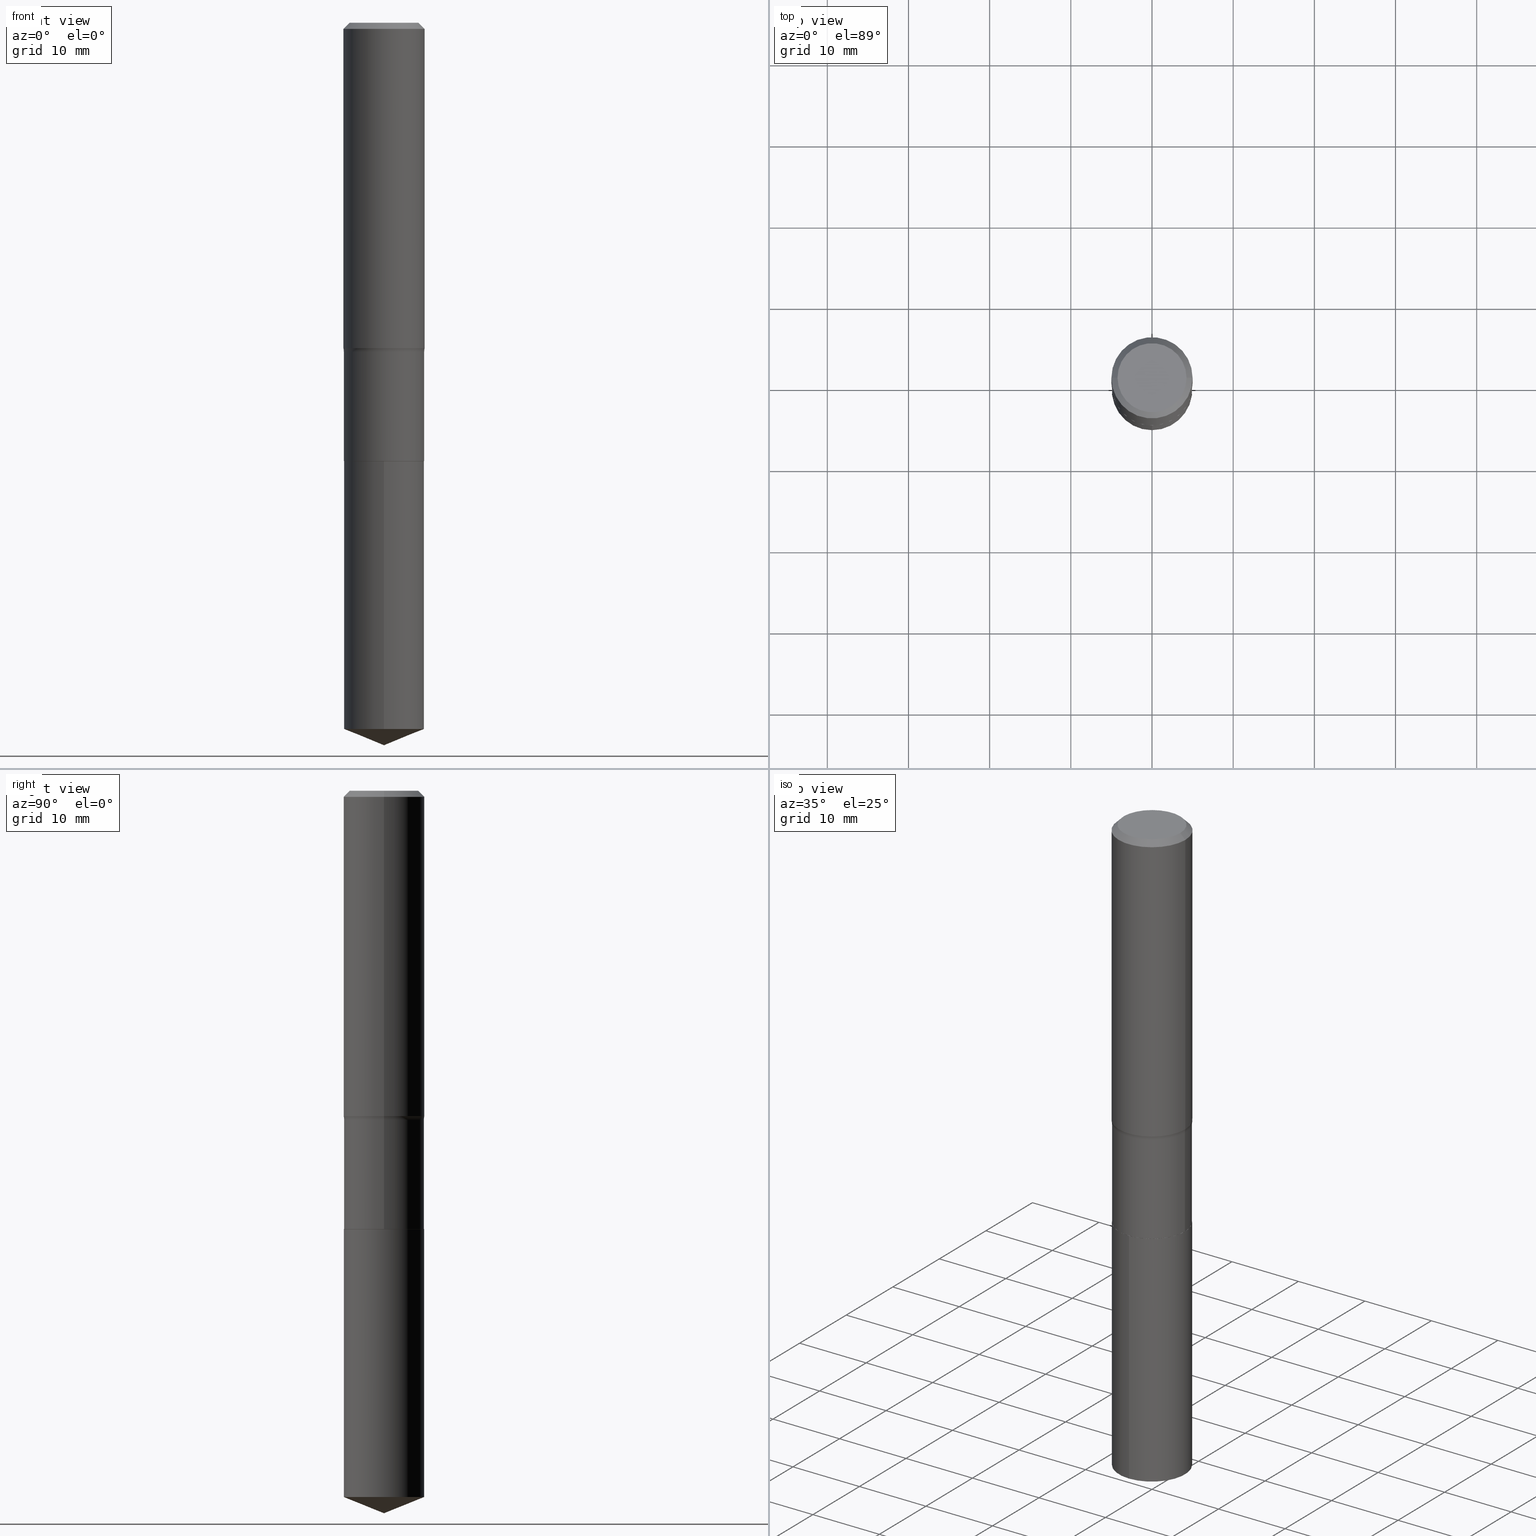
[diagram: canonical four-view strip — front | top / right | iso, engineering-drawing reading convention]
A machine part, canonical four-view strip (front | top / right | iso — engineering-drawing reading convention). The complete STEP part file that produces these views, byte-faithful:
ISO-10303-21;
HEADER;
FILE_DESCRIPTION (( 'STEP AP203' ),
    '1' );
FILE_NAME ('69189.STEP',
    '2024-04-19T17:21:02',
    ( '' ),
    ( '' ),
    'SwSTEP 2.0',
    'SolidWorks 2023',
    '' );
FILE_SCHEMA (( 'CONFIG_CONTROL_DESIGN' ));
ENDSEC;

DATA;
#1 = CARTESIAN_POINT ( 'NONE',  ( 3.900522745865292334E-29, -5.568912735454817265E-15, -1.594999999999999751 ) ) ;
#2 = AXIS2_PLACEMENT_3D ( 'NONE', #230, #159, #44 ) ;
#3 = DIRECTION ( 'NONE',  ( 1.000000000000000000, -6.982962677686267499E-15, 0.000000000000000000 ) ) ;
#4 = ORIENTED_EDGE ( 'NONE', *, *, #154, .F. ) ;
#5 = DIRECTION ( 'NONE',  ( -2.445359563184350382E-29, 3.491637781037997062E-15, 1.000000000000000000 ) ) ;
#6 = DIRECTION ( 'NONE',  ( 1.000000000000000000, -6.982962677686267499E-15, 0.000000000000000000 ) ) ;
#7 = EDGE_LOOP ( 'NONE', ( #402, #56, #189, #197 ) ) ;
#8 = AXIS2_PLACEMENT_3D ( 'NONE', #298, #29, #331 ) ;
#9 = VECTOR ( 'NONE', #236, 39.37007874015748143 ) ;
#10 = DIRECTION ( 'NONE',  ( 6.588037525764792868E-15, 0.9271838545667893117, 0.3746065934159070188 ) ) ;
#11 = EDGE_CURVE ( 'NONE', #280, #322, #224, .T. ) ;
#12 = ORIENTED_EDGE ( 'NONE', *, *, #403, .F. ) ;
#13 = DIRECTION ( 'NONE',  ( -6.982962677686266711E-15, -1.000000000000000000, 2.803332984776052637E-15 ) ) ;
#14 = ORIENTED_EDGE ( 'NONE', *, *, #346, .F. ) ;
#15 = FACE_OUTER_BOUND ( 'NONE', #182, .T. ) ;
#16 = ORIENTED_EDGE ( 'NONE', *, *, #51, .F. ) ;
#17 = PRODUCT ( '69189', '69189', '', ( #336 ) ) ;
#18 = EDGE_CURVE ( 'NONE', #322, #466, #20, .T. ) ;
#19 = PERSON_AND_ORGANIZATION ( #141, #327 ) ;
#20 = CIRCLE ( 'NONE', #194, 0.07800000000000002764 ) ;
#21 = VECTOR ( 'NONE', #323, 39.37007874015748143 ) ;
#22 = ORIENTED_EDGE ( 'NONE', *, *, #313, .T. ) ;
#23 = DIRECTION ( 'NONE',  ( -2.445468806185136597E-29, 3.491481338843145583E-15, 1.000000000000000000 ) ) ;
#24 = CALENDAR_DATE ( 2024, 19, 4 ) ;
#25 = ORIENTED_EDGE ( 'NONE', *, *, #296, .T. ) ;
#26 = DIRECTION ( 'NONE',  ( 1.000000000000000000, -6.982962677686269866E-15, 0.000000000000000000 ) ) ;
#27 = CIRCLE ( 'NONE', #356, 0.1948999999999999067 ) ;
#28 = DATE_AND_TIME ( #291, #425 ) ;
#29 = DIRECTION ( 'NONE',  ( -2.445359563184350382E-29, 3.491637781037997062E-15, 1.000000000000000000 ) ) ;
#30 = PRODUCT_DEFINITION ( 'UNKNOWN', '', #490, #52 ) ;
#31 = ADVANCED_BREP_SHAPE_REPRESENTATION ( '69189', ( #36, #368, #473 ), #348 ) ;
#32 = DIRECTION ( 'NONE',  ( -2.445468806185136877E-29, 3.491481338843145188E-15, 1.000000000000000000 ) ) ;
#33 = ADVANCED_FACE ( 'NONE', ( #144 ), #57, .T. ) ;
#34 = CARTESIAN_POINT ( 'NONE',  ( -1.360979425881001224E-15, -0.1949000000000074007, -2.125899999999999235 ) ) ;
#35 = CIRCLE ( 'NONE', #113, 0.1673224999999999851 ) ;
#36 = MANIFOLD_SOLID_BREP ( 'Body-Move/Copy2[1]', #173 ) ;
#37 = VERTEX_POINT ( 'NONE', #105 ) ;
#38 = AXIS2_PLACEMENT_3D ( 'NONE', #204, #430, #311 ) ;
#39 = AXIS2_PLACEMENT_3D ( 'NONE', #314, #470, #277 ) ;
#40 = LOCAL_TIME ( 13, 21, 2.000000000000000000, #438 ) ;
#41 = CARTESIAN_POINT ( 'NONE',  ( -0.1968500000000000250, 1.271501487869850120E-15, -0.02952750000000020636 ) ) ;
#42 = ORIENTED_EDGE ( 'NONE', *, *, #293, .T. ) ;
#43 = CARTESIAN_POINT ( 'NONE',  ( -0.1968500000000002470, -4.109695078470121619E-15, -1.577668020886232814 ) ) ;
#44 = DIRECTION ( 'NONE',  ( 1.000000000000000000, -6.982962677686265922E-15, 0.000000000000000000 ) ) ;
#45 = VERTEX_POINT ( 'NONE', #488 ) ;
#46 = EDGE_CURVE ( 'NONE', #60, #227, #147, .T. ) ;
#47 = VECTOR ( 'NONE', #74, 39.37007874015748143 ) ;
#48 = CARTESIAN_POINT ( 'NONE',  ( 8.375968480027488241E-29, -1.195906903108250715E-14, -3.425155288584728286 ) ) ;
#49 = FACE_OUTER_BOUND ( 'NONE', #429, .T. ) ;
#50 = ORIENTED_EDGE ( 'NONE', *, *, #11, .T. ) ;
#51 = EDGE_CURVE ( 'NONE', #82, #60, #299, .T. ) ;
#52 = DESIGN_CONTEXT ( 'detailed design', #55, 'design' ) ;
#53 = ADVANCED_FACE ( 'NONE', ( #408 ), #261, .T. ) ;
#54 = CARTESIAN_POINT ( 'NONE',  ( 0.1968500000000000250, -1.477690918335233294E-15, -0.02952750000000020636 ) ) ;
#55 = APPLICATION_CONTEXT ( 'configuration controlled 3d designs of mechanical parts and assemblies' ) ;
#56 = ORIENTED_EDGE ( 'NONE', *, *, #316, .F. ) ;
#57 = CONICAL_SURFACE ( 'NONE', #96, 97.44436430772871915, 1.186823891356145966 ) ;
#58 = AXIS2_PLACEMENT_3D ( 'NONE', #125, #5, #13 ) ;
#59 = CARTESIAN_POINT ( 'NONE',  ( -5.008488096090108951E-47, 7.150793614331948590E-33, 2.048068690724054183E-18 ) ) ;
#60 = VERTEX_POINT ( 'NONE', #442 ) ;
#61 = CARTESIAN_POINT ( 'NONE',  ( 8.568763925768371562E-29, -1.223368446005496745E-14, -3.503899999999999793 ) ) ;
#62 = ORIENTED_EDGE ( 'NONE', *, *, #190, .F. ) ;
#63 = DIRECTION ( 'NONE',  ( 1.000000000000000000, -6.982962677686265922E-15, 0.000000000000000000 ) ) ;
#64 = ORIENTED_EDGE ( 'NONE', *, *, #140, .T. ) ;
#65 = LOCAL_TIME ( 13, 21, 2.000000000000000000, #482 ) ;
#66 = DIRECTION ( 'NONE',  ( -2.445468806185136597E-29, 3.491481338843145583E-15, 1.000000000000000000 ) ) ;
#67 =( CONVERSION_BASED_UNIT ( 'INCH', #214 ) LENGTH_UNIT ( ) NAMED_UNIT ( #475 ) );
#68 = DIRECTION ( 'NONE',  ( -2.445468806185136597E-29, 3.491481338843145583E-15, 1.000000000000000000 ) ) ;
#69 = CARTESIAN_POINT ( 'NONE',  ( 7.220858017463212989E-31, -1.030947152326917102E-16, -0.02952750000000020636 ) ) ;
#70 = EDGE_CURVE ( 'NONE', #427, #200, #365, .T. ) ;
#71 = LINE ( 'NONE', #179, #47 ) ;
#72 = APPLICATION_PROTOCOL_DEFINITION ( 'international standard', 'config_control_design', 1994, #340 ) ;
#73 = AXIS2_PLACEMENT_3D ( 'NONE', #295, #68, #26 ) ;
#74 = DIRECTION ( 'NONE',  ( -2.445468806185136877E-29, 3.491481338843145188E-15, 1.000000000000000000 ) ) ;
#75 = CIRCLE ( 'NONE', #443, 0.1948999999999999899 ) ;
#76 = PERSON_AND_ORGANIZATION_ROLE ( 'design_owner' ) ;
#77 = CARTESIAN_POINT ( 'NONE',  ( 5.198822135068982087E-29, -7.422540178246643119E-15, -2.125899999999999679 ) ) ;
#78 = CARTESIAN_POINT ( 'NONE',  ( 5.198822135068982087E-29, -7.422540178246643119E-15, -2.125899999999999679 ) ) ;
#79 = ORIENTED_EDGE ( 'NONE', *, *, #403, .T. ) ;
#80 = CC_DESIGN_PERSON_AND_ORGANIZATION_ASSIGNMENT ( #286, #103, ( #83 ) ) ;
#81 = DIRECTION ( 'NONE',  ( -2.445468806185136597E-29, 3.491481338843145583E-15, 1.000000000000000000 ) ) ;
#82 = VERTEX_POINT ( 'NONE', #114 ) ;
#83 = SECURITY_CLASSIFICATION ( '', '', #476 ) ;
#84 = DIRECTION ( 'NONE',  ( -2.438088387897960049E-29, 3.491481338843145188E-15, 1.000000000000000000 ) ) ;
#85 = ADVANCED_FACE ( 'NONE', ( #444 ), #213, .T. ) ;
#86 = FACE_OUTER_BOUND ( 'NONE', #160, .T. ) ;
#87 = CARTESIAN_POINT ( 'NONE',  ( 3.858137931593122664E-29, -5.508398453813880195E-15, -1.577668020886232814 ) ) ;
#88 = CIRCLE ( 'NONE', #212, 0.1968500000000000250 ) ;
#89 = FACE_OUTER_BOUND ( 'NONE', #471, .T. ) ;
#90 = ORIENTED_EDGE ( 'NONE', *, *, #419, .F. ) ;
#91 = EDGE_CURVE ( 'NONE', #400, #37, #275, .T. ) ;
#92 = CARTESIAN_POINT ( 'NONE',  ( 0.1948999999999999344, -1.360979425881052894E-15, 9.503668536026277414E-30 ) ) ;
#93 = ORIENTED_EDGE ( 'NONE', *, *, #390, .T. ) ;
#94 = CARTESIAN_POINT ( 'NONE',  ( 8.568295373441645346E-29, -1.223434962097903768E-14, -3.503899999999999793 ) ) ;
#95 = ORIENTED_EDGE ( 'NONE', *, *, #301, .T. ) ;
#96 = AXIS2_PLACEMENT_3D ( 'NONE', #485, #445, #448 ) ;
#97 = DIRECTION ( 'NONE',  ( -6.982962677686265922E-15, -1.000000000000000000, 3.498761904101816908E-15 ) ) ;
#98 = ORIENTED_EDGE ( 'NONE', *, *, #245, .T. ) ;
#99 = DIRECTION ( 'NONE',  ( 1.000000000000000000, -6.982962677686265922E-15, 4.883557194083111780E-29 ) ) ;
#100 = ORIENTED_EDGE ( 'NONE', *, *, #316, .T. ) ;
#101 = CALENDAR_DATE ( 2024, 19, 4 ) ;
#102 = CARTESIAN_POINT ( 'NONE',  ( 0.1943999999999999895, -8.780028122788853203E-15, -2.125899999999999679 ) ) ;
#103 = PERSON_AND_ORGANIZATION_ROLE ( 'classification_officer' ) ;
#104 = AXIS2_PLACEMENT_3D ( 'NONE', #78, #472, #6 ) ;
#105 = CARTESIAN_POINT ( 'NONE',  ( 0.1673224999999999851, -1.300749711163072397E-15, 4.096137381456741925E-18 ) ) ;
#106 = EDGE_CURVE ( 'NONE', #237, #266, #379, .T. ) ;
#107 =( NAMED_UNIT ( * ) SI_UNIT ( $, .STERADIAN. ) SOLID_ANGLE_UNIT ( ) );
#108 = DIRECTION ( 'NONE',  ( 1.000000000000000000, -6.982962677686267499E-15, 0.000000000000000000 ) ) ;
#109 = UNCERTAINTY_MEASURE_WITH_UNIT (LENGTH_MEASURE( 1.000000000000000082E-05 ), #67, 'distance_accuracy_value', 'NONE');
#110 = DATE_AND_TIME ( #24, #151 ) ;
#111 = DIRECTION ( 'NONE',  ( -2.445468806185136597E-29, 3.491481338843145583E-15, 1.000000000000000000 ) ) ;
#112 = EDGE_CURVE ( 'NONE', #227, #278, #374, .T. ) ;
#113 = AXIS2_PLACEMENT_3D ( 'NONE', #422, #384, #451 ) ;
#114 = CARTESIAN_POINT ( 'NONE',  ( -1.360979425880969472E-15, -0.1949000000000119248, -3.425155288584727398 ) ) ;
#115 = CC_DESIGN_APPROVAL ( #158, ( #83 ) ) ;
#116 = DIRECTION ( 'NONE',  ( -2.445468806185136597E-29, 3.491481338843145583E-15, 1.000000000000000000 ) ) ;
#117 = CARTESIAN_POINT ( 'NONE',  ( 0.1943999999999999895, -8.780028122788853203E-15, -2.125899999999999679 ) ) ;
#118 = EDGE_LOOP ( 'NONE', ( #232, #208, #167 ) ) ;
#119 = DIRECTION ( 'NONE',  ( 1.000000000000000000, -6.982962677686265922E-15, 4.876176775795935793E-29 ) ) ;
#120 = PLANE ( 'NONE',  #218 ) ;
#121 = CARTESIAN_POINT ( 'NONE',  ( 5.198822135068982087E-29, -7.422540178246643119E-15, -2.125899999999999679 ) ) ;
#122 = CARTESIAN_POINT ( 'NONE',  ( 5.198822135068982087E-29, -7.422540178246643119E-15, -2.125899999999999679 ) ) ;
#123 = ADVANCED_FACE ( 'NONE', ( #186 ), #289, .T. ) ;
#124 = CC_DESIGN_APPROVAL ( #209, ( #30 ) ) ;
#125 = CARTESIAN_POINT ( 'NONE',  ( 5.198822135068982087E-29, -7.422540178246643119E-15, -2.125899999999999679 ) ) ;
#126 = ORIENTED_EDGE ( 'NONE', *, *, #11, .F. ) ;
#127 = FACE_OUTER_BOUND ( 'NONE', #329, .T. ) ;
#128 = ORIENTED_EDGE ( 'NONE', *, *, #106, .F. ) ;
#129 = CARTESIAN_POINT ( 'NONE',  ( -8.770547093742795597E-28, 1.252320373310577024E-13, 35.86617874015747987 ) ) ;
#130 = ORIENTED_EDGE ( 'NONE', *, *, #138, .T. ) ;
#131 = EDGE_CURVE ( 'NONE', #280, #45, #71, .T. ) ;
#132 = AXIS2_PLACEMENT_3D ( 'NONE', #343, #421, #192 ) ;
#133 = LINE ( 'NONE', #161, #334 ) ;
#134 = EDGE_LOOP ( 'NONE', ( #292, #478, #130, #351 ) ) ;
#135 = DIRECTION ( 'NONE',  ( 2.445468806185136597E-29, -3.491481338843145583E-15, -1.000000000000000000 ) ) ;
#136 = VERTEX_POINT ( 'NONE', #221 ) ;
#137 = DATE_TIME_ROLE ( 'classification_date' ) ;
#138 = EDGE_CURVE ( 'NONE', #200, #136, #377, .T. ) ;
#139 = DIRECTION ( 'NONE',  ( 1.000000000000000000, -6.982962677686266711E-15, 4.876176775795936914E-29 ) ) ;
#140 = EDGE_CURVE ( 'NONE', #237, #136, #156, .T. ) ;
#141 = PERSON ( 'UNSPECIFIED', 'UNSPECIFIED', 'UNSPECIFIED', ('UNSPECIFIED'), ('UNSPECIFIED'), ('UNSPECIFIED') ) ;
#142 = PERSON_AND_ORGANIZATION_ROLE ( 'creator' ) ;
#143 = AXIS2_PLACEMENT_3D ( 'NONE', #121, #187, #3 ) ;
#144 = FACE_OUTER_BOUND ( 'NONE', #118, .T. ) ;
#145 = CARTESIAN_POINT ( 'NONE',  ( 1.384847791996486861E-15, 0.1948999999999925792, -2.125900000000000567 ) ) ;
#146 = APPROVAL_STATUS ( 'not_yet_approved' ) ;
#147 = LINE ( 'NONE', #145, #333 ) ;
#148 = DATE_AND_TIME ( #449, #320 ) ;
#149 = AXIS2_PLACEMENT_3D ( 'NONE', #77, #66, #108 ) ;
#150 = CARTESIAN_POINT ( 'NONE',  ( 3.900522745865292334E-29, -5.568912735454817265E-15, -1.594999999999999751 ) ) ;
#151 = LOCAL_TIME ( 13, 21, 2.000000000000000000, #376 ) ;
#152 = LINE ( 'NONE', #273, #433 ) ;
#153 = CARTESIAN_POINT ( 'NONE',  ( -0.1948999999999999067, -5.110005794519583264E-15, -1.594999999999999751 ) ) ;
#154 = EDGE_CURVE ( 'NONE', #322, #364, #152, .T. ) ;
#155 = DIRECTION ( 'NONE',  ( -2.445468806185136597E-29, 3.491481338843145583E-15, 1.000000000000000000 ) ) ;
#156 = CIRCLE ( 'NONE', #418, 0.1948999999999999899 ) ;
#157 = CONICAL_SURFACE ( 'NONE', #220, 0.1968500000000000250, 0.7853981633974452814 ) ;
#158 = APPROVAL ( #228, 'UNSPECIFIED' ) ;
#159 = DIRECTION ( 'NONE',  ( -2.445468806185136597E-29, 3.491481338843145583E-15, 1.000000000000000000 ) ) ;
#160 = EDGE_LOOP ( 'NONE', ( #211, #415, #353, #373 ) ) ;
#161 = CARTESIAN_POINT ( 'NONE',  ( 0.1968500000000000250, -1.453583746094017706E-15, -0.02952750000000020636 ) ) ;
#162 = CC_DESIGN_PERSON_AND_ORGANIZATION_ASSIGNMENT ( #175, #409, ( #30 ) ) ;
#163 = DIRECTION ( 'NONE',  ( -2.445468806185136597E-29, 3.491481338843145583E-15, 1.000000000000000000 ) ) ;
#164 = ORIENTED_EDGE ( 'NONE', *, *, #178, .T. ) ;
#165 = AXIS2_PLACEMENT_3D ( 'NONE', #129, #436, #97 ) ;
#166 = DIRECTION ( 'NONE',  ( 0.7071067811865453523, -7.319954787623248157E-15, -0.7071067811865496822 ) ) ;
#167 = ORIENTED_EDGE ( 'NONE', *, *, #338, .F. ) ;
#168 = FACE_OUTER_BOUND ( 'NONE', #7, .T. ) ;
#169 = ORIENTED_EDGE ( 'NONE', *, *, #178, .F. ) ;
#170 = ADVANCED_FACE ( 'NONE', ( #223 ), #120, .F. ) ;
#171 = CYLINDRICAL_SURFACE ( 'NONE', #259, 0.1948999999999999344 ) ;
#172 = ORIENTED_EDGE ( 'NONE', *, *, #346, .T. ) ;
#173 = CLOSED_SHELL ( 'NONE', ( #447, #453, #33, #260, #393 ) ) ;
#174 = AXIS2_PLACEMENT_3D ( 'NONE', #385, #417, #383 ) ;
#175 = PERSON_AND_ORGANIZATION ( #141, #327 ) ;
#176 = ORIENTED_EDGE ( 'NONE', *, *, #263, .T. ) ;
#177 = DIRECTION ( 'NONE',  ( 1.000000000000000000, 0.000000000000000000, 0.000000000000000000 ) ) ;
#178 = EDGE_CURVE ( 'NONE', #364, #45, #463, .T. ) ;
#179 = CARTESIAN_POINT ( 'NONE',  ( -0.1968500000000001082, 1.398703375343757985E-15, -9.682923725166787881E-30 ) ) ;
#180 = DIRECTION ( 'NONE',  ( 1.000000000000000000, -6.982962677686267499E-15, 4.876294436782262290E-29 ) ) ;
#181 = DIRECTION ( 'NONE',  ( 0.000000000000000000, 0.000000000000000000, 1.000000000000000000 ) ) ;
#182 = EDGE_LOOP ( 'NONE', ( #126, #25, #95, #474 ) ) ;
#183 = DATE_TIME_ROLE ( 'creation_date' ) ;
#184 = CARTESIAN_POINT ( 'NONE',  ( 0.2728999999999999204, -7.474563250195398403E-15, -1.594999999999999751 ) ) ;
#185 = APPROVAL_ROLE ( '' ) ;
#186 = FACE_OUTER_BOUND ( 'NONE', #326, .T. ) ;
#187 = DIRECTION ( 'NONE',  ( -2.445468806185136597E-29, 3.491481338843145583E-15, 1.000000000000000000 ) ) ;
#188 = VECTOR ( 'NONE', #191, 39.37007874015748143 ) ;
#189 = ORIENTED_EDGE ( 'NONE', *, *, #18, .T. ) ;
#190 = EDGE_CURVE ( 'NONE', #466, #266, #283, .T. ) ;
#191 = DIRECTION ( 'NONE',  ( -0.7071067811865453523, 2.468850131082234184E-15, -0.7071067811865496822 ) ) ;
#192 = DIRECTION ( 'NONE',  ( -1.000000000000000000, 7.105427357601001859E-15, 0.000000000000000000 ) ) ;
#193 = LINE ( 'NONE', #459, #315 ) ;
#194 = AXIS2_PLACEMENT_3D ( 'NONE', #184, #339, #335 ) ;
#195 = CC_DESIGN_SECURITY_CLASSIFICATION ( #83, ( #490 ) ) ;
#196 = DIRECTION ( 'NONE',  ( -2.445359563184350382E-29, 3.491637781037997062E-15, 1.000000000000000000 ) ) ;
#197 = ORIENTED_EDGE ( 'NONE', *, *, #190, .T. ) ;
#198 = CC_DESIGN_DATE_AND_TIME_ASSIGNMENT ( #28, #183, ( #30 ) ) ;
#199 = DIRECTION ( 'NONE',  ( -2.445468806185136597E-29, 3.491481338843145583E-15, 1.000000000000000000 ) ) ;
#200 = VERTEX_POINT ( 'NONE', #117 ) ;
#201 = DIRECTION ( 'NONE',  ( -2.445468806185136597E-29, 3.491481338843145583E-15, 1.000000000000000000 ) ) ;
#202 = EDGE_LOOP ( 'NONE', ( #205, #306, #318, #359 ) ) ;
#203 = AXIS2_PLACEMENT_3D ( 'NONE', #48, #196, #302 ) ;
#204 = CARTESIAN_POINT ( 'NONE',  ( 5.198822135068982087E-29, -7.422540178246643119E-15, -2.125899999999999679 ) ) ;
#205 = ORIENTED_EDGE ( 'NONE', *, *, #51, .T. ) ;
#206 = PRODUCT_DEFINITION_SHAPE ( 'NONE', 'NONE',  #30 ) ;
#207 = CARTESIAN_POINT ( 'NONE',  ( -0.1943999999999999895, -6.038595872754897034E-15, -2.125899999999999679 ) ) ;
#208 = ORIENTED_EDGE ( 'NONE', *, *, #407, .T. ) ;
#209 = APPROVAL ( #297, 'UNSPECIFIED' ) ;
#210 = PLANE ( 'NONE',  #382 ) ;
#211 = ORIENTED_EDGE ( 'NONE', *, *, #46, .F. ) ;
#212 = AXIS2_PLACEMENT_3D ( 'NONE', #241, #199, #63 ) ;
#213 = CYLINDRICAL_SURFACE ( 'NONE', #457, 0.1968500000000001082 ) ;
#214 = LENGTH_MEASURE_WITH_UNIT ( LENGTH_MEASURE( 0.02539999999999999897 ), #404 );
#215 = DIRECTION ( 'NONE',  ( 1.000000000000000000, -6.982962677686266711E-15, 4.876176775795935793E-29 ) ) ;
#216 = DATE_AND_TIME ( #258, #65 ) ;
#217 = EDGE_LOOP ( 'NONE', ( #42, #22, #14, #489 ) ) ;
#218 = AXIS2_PLACEMENT_3D ( 'NONE', #492, #84, #119 ) ;
#219 = APPROVAL_ROLE ( '' ) ;
#220 = AXIS2_PLACEMENT_3D ( 'NONE', #69, #135, #246 ) ;
#221 = CARTESIAN_POINT ( 'NONE',  ( 0.1948999999999999899, -8.781773863458275496E-15, -2.125399999999999956 ) ) ;
#222 = CARTESIAN_POINT ( 'NONE',  ( 0.000000000000000000, 0.000000000000000000, 0.000000000000000000 ) ) ;
#223 = FACE_OUTER_BOUND ( 'NONE', #452, .T. ) ;
#224 = CIRCLE ( 'NONE', #73, 0.1968500000000002470 ) ;
#225 = TOROIDAL_SURFACE ( 'NONE', #387, 0.2728999999999999204, 0.07799999999999999989 ) ;
#226 = DIRECTION ( 'NONE',  ( 1.000000000000000000, -6.982962677686269866E-15, 0.000000000000000000 ) ) ;
#227 = VERTEX_POINT ( 'NONE', #344 ) ;
#228 = APPROVAL_STATUS ( 'not_yet_approved' ) ;
#229 = DIRECTION ( 'NONE',  ( -2.445468806185136597E-29, 3.491481338843145583E-15, 1.000000000000000000 ) ) ;
#230 = CARTESIAN_POINT ( 'NONE',  ( 7.220858017463212989E-31, -1.030947152326917102E-16, -0.02952750000000020636 ) ) ;
#231 = DIRECTION ( 'NONE',  ( -2.445468806185136597E-29, 3.491481338843145583E-15, 1.000000000000000000 ) ) ;
#232 = ORIENTED_EDGE ( 'NONE', *, *, #399, .F. ) ;
#233 = CIRCLE ( 'NONE', #58, 0.1948999999999999899 ) ;
#234 = CARTESIAN_POINT ( 'NONE',  ( 3.900522745865292334E-29, -5.568912735454817265E-15, -1.594999999999999751 ) ) ;
#235 = ORIENTED_EDGE ( 'NONE', *, *, #301, .F. ) ;
#236 = DIRECTION ( 'NONE',  ( -2.445468806185136877E-29, 3.491481338843145188E-15, 1.000000000000000000 ) ) ;
#237 = VERTEX_POINT ( 'NONE', #345 ) ;
#238 = PLANE ( 'NONE',  #39 ) ;
#239 = ORIENTED_EDGE ( 'NONE', *, *, #70, .F. ) ;
#240 = AXIS2_PLACEMENT_3D ( 'NONE', #122, #274, #426 ) ;
#241 = CARTESIAN_POINT ( 'NONE',  ( 7.220858017463212989E-31, -1.030947152326917102E-16, -0.02952750000000020636 ) ) ;
#242 = ORIENTED_EDGE ( 'NONE', *, *, #106, .T. ) ;
#243 = FACE_OUTER_BOUND ( 'NONE', #217, .T. ) ;
#244 = ORIENTED_EDGE ( 'NONE', *, *, #91, .F. ) ;
#245 = EDGE_CURVE ( 'NONE', #37, #400, #35, .T. ) ;
#246 = DIRECTION ( 'NONE',  ( -1.000000000000000000, 6.982962677686265922E-15, 0.000000000000000000 ) ) ;
#247 = ORIENTED_EDGE ( 'NONE', *, *, #263, .F. ) ;
#248 = CC_DESIGN_DATE_AND_TIME_ASSIGNMENT ( #479, #137, ( #83 ) ) ;
#249 = VECTOR ( 'NONE', #405, 39.37007874015748143 ) ;
#250 = VECTOR ( 'NONE', #32, 39.37007874015748143 ) ;
#251 = CIRCLE ( 'NONE', #203, 0.1948999999999999899 ) ;
#252 =( NAMED_UNIT ( * ) PLANE_ANGLE_UNIT ( ) SI_UNIT ( $, .RADIAN. ) );
#253 = DIRECTION ( 'NONE',  ( -2.445359563184350382E-29, 3.491637781037997457E-15, 1.000000000000000000 ) ) ;
#254 = DIRECTION ( 'NONE',  ( -2.445359563184350382E-29, 3.491637781037997062E-15, 1.000000000000000000 ) ) ;
#255 = EDGE_CURVE ( 'NONE', #82, #278, #193, .T. ) ;
#256 = CARTESIAN_POINT ( 'NONE',  ( -1.001697619218021790E-46, 1.430158722866389718E-32, 4.096137381448108366E-18 ) ) ;
#257 = AXIS2_PLACEMENT_3D ( 'NONE', #412, #254, #483 ) ;
#258 = CALENDAR_DATE ( 2024, 19, 4 ) ;
#259 = AXIS2_PLACEMENT_3D ( 'NONE', #354, #163, #401 ) ;
#260 = ADVANCED_FACE ( 'NONE', ( #86 ), #265, .T. ) ;
#261 = CYLINDRICAL_SURFACE ( 'NONE', #307, 0.1968500000000001082 ) ;
#262 = FACE_OUTER_BOUND ( 'NONE', #134, .T. ) ;
#263 = EDGE_CURVE ( 'NONE', #400, #45, #423, .T. ) ;
#264 = SHAPE_DEFINITION_REPRESENTATION ( #206, #31 ) ;
#265 = CYLINDRICAL_SURFACE ( 'NONE', #174, 0.1948999999999999899 ) ;
#266 = VERTEX_POINT ( 'NONE', #153 ) ;
#267 = PERSON_AND_ORGANIZATION ( #141, #327 ) ;
#268 = TOROIDAL_SURFACE ( 'NONE', #484, 0.2728999999999999204, 0.07799999999999999989 ) ;
#269 = DIRECTION ( 'NONE',  ( -2.445359563184350382E-29, 3.491637781037997457E-15, 1.000000000000000000 ) ) ;
#270 = APPROVAL_PERSON_ORGANIZATION ( #267, #158, #185 ) ;
#271 = DIRECTION ( 'NONE',  ( 1.000000000000000000, -6.982962677686267499E-15, 0.000000000000000000 ) ) ;
#272 = ADVANCED_FACE ( 'NONE', ( #305 ), #420, .T. ) ;
#273 = CARTESIAN_POINT ( 'NONE',  ( 0.1968500000000001082, -1.374596203102542397E-15, 9.598753983154305062E-30 ) ) ;
#274 = DIRECTION ( 'NONE',  ( -2.445468806185136597E-29, 3.491481338843145583E-15, 1.000000000000000000 ) ) ;
#275 = CIRCLE ( 'NONE', #464, 0.1673224999999999851 ) ;
#276 = APPROVAL_PERSON_ORGANIZATION ( #487, #287, #446 ) ;
#277 = DIRECTION ( 'NONE',  ( 6.982962677686265922E-15, 1.000000000000000000, -3.491637781037997457E-15 ) ) ;
#278 = VERTEX_POINT ( 'NONE', #34 ) ;
#279 = CYLINDRICAL_SURFACE ( 'NONE', #38, 0.1948999999999999899 ) ;
#280 = VERTEX_POINT ( 'NONE', #43 ) ;
#281 = CARTESIAN_POINT ( 'NONE',  ( 0.1948999999999999067, -6.929892161335869568E-15, -1.594999999999999751 ) ) ;
#282 = ORIENTED_EDGE ( 'NONE', *, *, #407, .F. ) ;
#283 = CIRCLE ( 'NONE', #347, 0.1948999999999999067 ) ;
#284 = DIRECTION ( 'NONE',  ( 2.438088387897960049E-29, -3.491481338843145188E-15, -1.000000000000000000 ) ) ;
#285 = ORIENTED_EDGE ( 'NONE', *, *, #91, .T. ) ;
#286 = PERSON_AND_ORGANIZATION ( #141, #327 ) ;
#287 = APPROVAL ( #146, 'UNSPECIFIED' ) ;
#288 = CARTESIAN_POINT ( 'NONE',  ( -0.1948999999999999344, 1.384847791996434796E-15, -9.587004490906808522E-30 ) ) ;
#289 = CYLINDRICAL_SURFACE ( 'NONE', #355, 0.1948999999999999344 ) ;
#290 = AXIS2_PLACEMENT_3D ( 'NONE', #349, #381, #455 ) ;
#291 = CALENDAR_DATE ( 2024, 19, 4 ) ;
#292 = ORIENTED_EDGE ( 'NONE', *, *, #313, .F. ) ;
#293 = EDGE_CURVE ( 'NONE', #200, #427, #397, .T. ) ;
#294 = APPLICATION_PROTOCOL_DEFINITION ( 'international standard', 'config_control_design', 1994, #55 ) ;
#295 = CARTESIAN_POINT ( 'NONE',  ( 3.858137931593122664E-29, -5.508398453813880195E-15, -1.577668020886232814 ) ) ;
#296 = EDGE_CURVE ( 'NONE', #280, #266, #465, .T. ) ;
#297 = APPROVAL_STATUS ( 'not_yet_approved' ) ;
#298 = CARTESIAN_POINT ( 'NONE',  ( 8.375968480027488241E-29, -1.195906903108250715E-14, -3.425155288584728286 ) ) ;
#299 = CIRCLE ( 'NONE', #8, 0.1948999999999999899 ) ;
#300 = APPROVAL_PERSON_ORGANIZATION ( #441, #209, #219 ) ;
#301 = EDGE_CURVE ( 'NONE', #266, #466, #27, .T. ) ;
#302 = DIRECTION ( 'NONE',  ( -6.982962677686266711E-15, -1.000000000000000000, 2.803332984776052637E-15 ) ) ;
#303 = DIRECTION ( 'NONE',  ( 1.000000000000000000, -6.982962677686269866E-15, 0.000000000000000000 ) ) ;
#304 = PRODUCT_RELATED_PRODUCT_CATEGORY ( 'detail', '', ( #17 ) ) ;
#305 = FACE_OUTER_BOUND ( 'NONE', #437, .T. ) ;
#306 = ORIENTED_EDGE ( 'NONE', *, *, #46, .T. ) ;
#307 = AXIS2_PLACEMENT_3D ( 'NONE', #481, #111, #215 ) ;
#308 = LINE ( 'NONE', #491, #375 ) ;
#309 = DIRECTION ( 'NONE',  ( 1.000000000000000000, -6.982962677686267499E-15, 0.000000000000000000 ) ) ;
#310 = EDGE_LOOP ( 'NONE', ( #128, #64, #398, #235 ) ) ;
#311 = DIRECTION ( 'NONE',  ( -6.982962677686266711E-15, -1.000000000000000000, 2.803332984776052637E-15 ) ) ;
#312 = ORIENTED_EDGE ( 'NONE', *, *, #399, .T. ) ;
#313 = EDGE_CURVE ( 'NONE', #427, #237, #308, .T. ) ;
#314 = CARTESIAN_POINT ( 'NONE',  ( 5.198822135068982087E-29, -7.422540178246643119E-15, -2.125899999999999679 ) ) ;
#315 = VECTOR ( 'NONE', #269, 39.37007874015748143 ) ;
#316 = EDGE_CURVE ( 'NONE', #322, #280, #434, .T. ) ;
#317 = CONICAL_SURFACE ( 'NONE', #104, 0.1943999999999999895, 0.7853981633975507526 ) ;
#318 = ORIENTED_EDGE ( 'NONE', *, *, #390, .F. ) ;
#319 = AXIS2_PLACEMENT_3D ( 'NONE', #87, #231, #388 ) ;
#320 = LOCAL_TIME ( 13, 21, 2.000000000000000000, #467 ) ;
#321 = LINE ( 'NONE', #94, #21 ) ;
#322 = VERTEX_POINT ( 'NONE', #416 ) ;
#323 = DIRECTION ( 'NONE',  ( -6.474490251793180995E-15, -0.9271838545667867582, 0.3746065934159135136 ) ) ;
#324 = ORIENTED_EDGE ( 'NONE', *, *, #131, .T. ) ;
#325 = CARTESIAN_POINT ( 'NONE',  ( 8.568295373441645346E-29, -1.223434962097903768E-14, -3.503899999999999793 ) ) ;
#326 = EDGE_LOOP ( 'NONE', ( #172, #242, #62, #90 ) ) ;
#327 = ORGANIZATION ( 'UNSPECIFIED', 'UNSPECIFIED', '' ) ;
#328 = PERSON_AND_ORGANIZATION_ROLE ( 'design_supplier' ) ;
#329 = EDGE_LOOP ( 'NONE', ( #285, #98 ) ) ;
#330 = PERSON_AND_ORGANIZATION ( #141, #327 ) ;
#331 = DIRECTION ( 'NONE',  ( -6.982962677686266711E-15, -1.000000000000000000, 2.803332984776052637E-15 ) ) ;
#332 = DIRECTION ( 'NONE',  ( 1.000000000000000000, -6.982962677686266711E-15, 4.876176775795935793E-29 ) ) ;
#333 = VECTOR ( 'NONE', #253, 39.37007874015748143 ) ;
#334 = VECTOR ( 'NONE', #166, 39.37007874015748143 ) ;
#335 = DIRECTION ( 'NONE',  ( 1.000000000000000000, -6.982962677686268288E-15, 0.000000000000000000 ) ) ;
#336 = MECHANICAL_CONTEXT ( 'NONE', #340, 'mechanical' ) ;
#337 = ORIENTED_EDGE ( 'NONE', *, *, #154, .T. ) ;
#338 = EDGE_CURVE ( 'NONE', #60, #82, #251, .T. ) ;
#339 = DIRECTION ( 'NONE',  ( -6.982962677686266711E-15, -1.000000000000000000, 3.491481338843145583E-15 ) ) ;
#340 = APPLICATION_CONTEXT ( 'configuration controlled 3d designs of mechanical parts and assemblies' ) ;
#341 = CC_DESIGN_PERSON_AND_ORGANIZATION_ASSIGNMENT ( #19, #328, ( #490 ) ) ;
#342 = VECTOR ( 'NONE', #10, 39.37007874015748854 ) ;
#343 = CARTESIAN_POINT ( 'NONE',  ( -0.2728999999999999204, -3.629841609565504424E-15, -1.594999999999999751 ) ) ;
#344 = CARTESIAN_POINT ( 'NONE',  ( 1.384847791996518810E-15, 0.1948999999999925792, -2.125900000000000567 ) ) ;
#345 = CARTESIAN_POINT ( 'NONE',  ( -0.1948999999999999899, -5.110005794519583264E-15, -2.125399999999999956 ) ) ;
#346 = EDGE_CURVE ( 'NONE', #136, #237, #75, .T. ) ;
#347 = AXIS2_PLACEMENT_3D ( 'NONE', #150, #229, #271 ) ;
#348 =( GEOMETRIC_REPRESENTATION_CONTEXT ( 3 ) GLOBAL_UNCERTAINTY_ASSIGNED_CONTEXT ( ( #109 ) ) GLOBAL_UNIT_ASSIGNED_CONTEXT ( ( #67, #252, #107 ) ) REPRESENTATION_CONTEXT ( 'NONE', 'WORKASPACE' ) );
#349 = CARTESIAN_POINT ( 'NONE',  ( 7.220858017463212989E-31, -1.030947152326917102E-16, -0.02952750000000020636 ) ) ;
#350 = DIRECTION ( 'NONE',  ( -2.445468806185136877E-29, 3.491481338843145188E-15, 1.000000000000000000 ) ) ;
#351 = ORIENTED_EDGE ( 'NONE', *, *, #140, .F. ) ;
#352 = FACE_OUTER_BOUND ( 'NONE', #202, .T. ) ;
#353 = ORIENTED_EDGE ( 'NONE', *, *, #255, .T. ) ;
#354 = CARTESIAN_POINT ( 'NONE',  ( 0.000000000000000000, 0.000000000000000000, 0.000000000000000000 ) ) ;
#355 = AXIS2_PLACEMENT_3D ( 'NONE', #410, #439, #139 ) ;
#356 = AXIS2_PLACEMENT_3D ( 'NONE', #1, #155, #309 ) ;
#357 = EDGE_LOOP ( 'NONE', ( #392, #50, #337, #386 ) ) ;
#358 = FACE_OUTER_BOUND ( 'NONE', #395, .T. ) ;
#359 = ORIENTED_EDGE ( 'NONE', *, *, #255, .F. ) ;
#360 = CARTESIAN_POINT ( 'NONE',  ( -0.1673224999999999851, 1.219954130253505263E-15, 4.096137381439757534E-18 ) ) ;
#361 = ORIENTED_EDGE ( 'NONE', *, *, #424, .T. ) ;
#362 = ADVANCED_FACE ( 'NONE', ( #262 ), #317, .T. ) ;
#363 = COORDINATED_UNIVERSAL_TIME_OFFSET ( 5, 0, .BEHIND. ) ;
#364 = VERTEX_POINT ( 'NONE', #54 ) ;
#365 = CIRCLE ( 'NONE', #149, 0.1943999999999999895 ) ;
#366 = CONICAL_SURFACE ( 'NONE', #240, 0.1943999999999999895, 0.7853981633975507526 ) ;
#367 = APPROVAL_DATE_TIME ( #110, #209 ) ;
#368 = MANIFOLD_SOLID_BREP ( 'Body-Move/Copy2[2]', #413 ) ;
#369 = CARTESIAN_POINT ( 'NONE',  ( 5.197599400665889285E-29, -7.420794437577220826E-15, -2.125399999999999956 ) ) ;
#370 = PERSON_AND_ORGANIZATION ( #141, #327 ) ;
#371 = ADVANCED_FACE ( 'NONE', ( #15 ), #268, .F. ) ;
#372 = DIRECTION ( 'NONE',  ( -2.445468806185136597E-29, 3.491481338843145583E-15, 1.000000000000000000 ) ) ;
#373 = ORIENTED_EDGE ( 'NONE', *, *, #112, .F. ) ;
#374 = CIRCLE ( 'NONE', #257, 0.1948999999999999899 ) ;
#375 = VECTOR ( 'NONE', #461, 39.37007874015748143 ) ;
#376 = COORDINATED_UNIVERSAL_TIME_OFFSET ( 5, 0, .BEHIND. ) ;
#377 = LINE ( 'NONE', #102, #249 ) ;
#378 = ADVANCED_FACE ( 'NONE', ( #391 ), #171, .T. ) ;
#379 = LINE ( 'NONE', #288, #250 ) ;
#380 = CC_DESIGN_PERSON_AND_ORGANIZATION_ASSIGNMENT ( #370, #76, ( #17 ) ) ;
#381 = DIRECTION ( 'NONE',  ( 2.445468806185136597E-29, -3.491481338843145583E-15, -1.000000000000000000 ) ) ;
#382 = AXIS2_PLACEMENT_3D ( 'NONE', #59, #284, #394 ) ;
#383 = DIRECTION ( 'NONE',  ( -6.982962677686266711E-15, -1.000000000000000000, 2.803332984776052637E-15 ) ) ;
#384 = DIRECTION ( 'NONE',  ( -2.445468806185136597E-29, 3.491481338843145583E-15, 1.000000000000000000 ) ) ;
#385 = CARTESIAN_POINT ( 'NONE',  ( 5.198822135068982087E-29, -7.422540178246643119E-15, -2.125899999999999679 ) ) ;
#386 = ORIENTED_EDGE ( 'NONE', *, *, #424, .F. ) ;
#387 = AXIS2_PLACEMENT_3D ( 'NONE', #432, #462, #99 ) ;
#388 = DIRECTION ( 'NONE',  ( 1.000000000000000000, -6.982962677686269866E-15, 0.000000000000000000 ) ) ;
#389 = ORIENTED_EDGE ( 'NONE', *, *, #112, .T. ) ;
#390 = EDGE_CURVE ( 'NONE', #278, #227, #233, .T. ) ;
#391 = FACE_OUTER_BOUND ( 'NONE', #310, .T. ) ;
#392 = ORIENTED_EDGE ( 'NONE', *, *, #131, .F. ) ;
#393 = ADVANCED_FACE ( 'NONE', ( #49 ), #238, .F. ) ;
#394 = DIRECTION ( 'NONE',  ( -1.000000000000000000, 6.982962677686265922E-15, -4.876176775795935793E-29 ) ) ;
#395 = EDGE_LOOP ( 'NONE', ( #282, #312, #16 ) ) ;
#396 = DIRECTION ( 'NONE',  ( 1.000000000000000000, -6.982962677686265922E-15, 4.883557194083111780E-29 ) ) ;
#397 = CIRCLE ( 'NONE', #143, 0.1943999999999999895 ) ;
#398 = ORIENTED_EDGE ( 'NONE', *, *, #419, .T. ) ;
#399 = EDGE_CURVE ( 'NONE', #431, #60, #428, .T. ) ;
#400 = VERTEX_POINT ( 'NONE', #360 ) ;
#401 = DIRECTION ( 'NONE',  ( 1.000000000000000000, -6.982962677686266711E-15, 4.876176775795936914E-29 ) ) ;
#402 = ORIENTED_EDGE ( 'NONE', *, *, #296, .F. ) ;
#403 = EDGE_CURVE ( 'NONE', #37, #364, #133, .T. ) ;
#404 =( LENGTH_UNIT ( ) NAMED_UNIT ( * ) SI_UNIT ( $, .METRE. ) );
#405 = DIRECTION ( 'NONE',  ( 0.7071067811866199593, -2.468850131083015945E-15, 0.7071067811864750752 ) ) ;
#406 = CC_DESIGN_APPROVAL ( #287, ( #490 ) ) ;
#407 = EDGE_CURVE ( 'NONE', #431, #82, #321, .T. ) ;
#408 = FACE_OUTER_BOUND ( 'NONE', #435, .T. ) ;
#409 = PERSON_AND_ORGANIZATION_ROLE ( 'creator' ) ;
#410 = CARTESIAN_POINT ( 'NONE',  ( 0.000000000000000000, 0.000000000000000000, 0.000000000000000000 ) ) ;
#411 = CARTESIAN_POINT ( 'NONE',  ( 0.000000000000000000, 0.000000000000000000, 0.000000000000000000 ) ) ;
#412 = CARTESIAN_POINT ( 'NONE',  ( 5.198822135068982087E-29, -7.422540178246643119E-15, -2.125899999999999679 ) ) ;
#413 = CLOSED_SHELL ( 'NONE', ( #477, #486, #53, #371, #123, #378, #460, #85, #272, #440, #170, #362 ) ) ;
#414 = APPROVAL_DATE_TIME ( #216, #287 ) ;
#415 = ORIENTED_EDGE ( 'NONE', *, *, #338, .T. ) ;
#416 = CARTESIAN_POINT ( 'NONE',  ( 0.1968500000000002470, -6.882994656916424959E-15, -1.577668020886232814 ) ) ;
#417 = DIRECTION ( 'NONE',  ( -2.445359563184350382E-29, 3.491637781037997062E-15, 1.000000000000000000 ) ) ;
#418 = AXIS2_PLACEMENT_3D ( 'NONE', #369, #81, #226 ) ;
#419 = EDGE_CURVE ( 'NONE', #136, #466, #468, .T. ) ;
#420 = CONICAL_SURFACE ( 'NONE', #290, 0.1968500000000000250, 0.7853981633974452814 ) ;
#421 = DIRECTION ( 'NONE',  ( 7.105427357601001859E-15, 1.000000000000000000, -3.491481338843145583E-15 ) ) ;
#422 = CARTESIAN_POINT ( 'NONE',  ( -1.001697619218021790E-46, 1.430158722866389718E-32, 4.096137381448108366E-18 ) ) ;
#423 = LINE ( 'NONE', #41, #188 ) ;
#424 = EDGE_CURVE ( 'NONE', #45, #364, #88, .T. ) ;
#425 = LOCAL_TIME ( 13, 21, 2.000000000000000000, #363 ) ;
#426 = DIRECTION ( 'NONE',  ( 1.000000000000000000, -6.982962677686267499E-15, 0.000000000000000000 ) ) ;
#427 = VERTEX_POINT ( 'NONE', #207 ) ;
#428 = LINE ( 'NONE', #61, #342 ) ;
#429 = EDGE_LOOP ( 'NONE', ( #93, #389 ) ) ;
#430 = DIRECTION ( 'NONE',  ( -2.445359563184350382E-29, 3.491637781037997062E-15, 1.000000000000000000 ) ) ;
#431 = VERTEX_POINT ( 'NONE', #325 ) ;
#432 = CARTESIAN_POINT ( 'NONE',  ( 3.900522745865292334E-29, -5.568912735454817265E-15, -1.594999999999999751 ) ) ;
#433 = VECTOR ( 'NONE', #350, 39.37007874015748143 ) ;
#434 = CIRCLE ( 'NONE', #319, 0.1968500000000002470 ) ;
#435 = EDGE_LOOP ( 'NONE', ( #100, #324, #169, #4 ) ) ;
#436 = DIRECTION ( 'NONE',  ( -2.445359563184350382E-29, 3.491637781037997062E-15, 1.000000000000000000 ) ) ;
#437 = EDGE_LOOP ( 'NONE', ( #12, #244, #176, #361 ) ) ;
#438 = COORDINATED_UNIVERSAL_TIME_OFFSET ( 5, 0, .BEHIND. ) ;
#439 = DIRECTION ( 'NONE',  ( -2.445468806185136597E-29, 3.491481338843145583E-15, 1.000000000000000000 ) ) ;
#440 = ADVANCED_FACE ( 'NONE', ( #127 ), #210, .F. ) ;
#441 = PERSON_AND_ORGANIZATION ( #141, #327 ) ;
#442 = CARTESIAN_POINT ( 'NONE',  ( 1.384847791996518810E-15, 0.1948999999999880550, -3.425155288584728730 ) ) ;
#443 = AXIS2_PLACEMENT_3D ( 'NONE', #450, #116, #303 ) ;
#444 = FACE_OUTER_BOUND ( 'NONE', #357, .T. ) ;
#445 = DIRECTION ( 'NONE',  ( -2.445359563184350382E-29, 3.491637781037997062E-15, 1.000000000000000000 ) ) ;
#446 = APPROVAL_ROLE ( '' ) ;
#447 = ADVANCED_FACE ( 'NONE', ( #352 ), #279, .T. ) ;
#448 = DIRECTION ( 'NONE',  ( -6.982962677686265922E-15, -1.000000000000000000, 3.498761904101816908E-15 ) ) ;
#449 = CALENDAR_DATE ( 2024, 19, 4 ) ;
#450 = CARTESIAN_POINT ( 'NONE',  ( 5.197599400665889285E-29, -7.420794437577220826E-15, -2.125399999999999956 ) ) ;
#451 = DIRECTION ( 'NONE',  ( 1.000000000000000000, -6.982962677686267499E-15, 4.876294436782262290E-29 ) ) ;
#452 = EDGE_LOOP ( 'NONE', ( #469, #239 ) ) ;
#453 = ADVANCED_FACE ( 'NONE', ( #358 ), #458, .T. ) ;
#454 = APPROVAL_DATE_TIME ( #148, #158 ) ;
#455 = DIRECTION ( 'NONE',  ( -1.000000000000000000, 6.982962677686265922E-15, 0.000000000000000000 ) ) ;
#456 = ORIENTED_EDGE ( 'NONE', *, *, #245, .F. ) ;
#457 = AXIS2_PLACEMENT_3D ( 'NONE', #222, #23, #332 ) ;
#458 = CONICAL_SURFACE ( 'NONE', #165, 97.44436430772871915, 1.186823891356145966 ) ;
#459 = CARTESIAN_POINT ( 'NONE',  ( -1.360979425881001224E-15, -0.1949000000000074007, -2.125899999999999235 ) ) ;
#460 = ADVANCED_FACE ( 'NONE', ( #168 ), #225, .F. ) ;
#461 = DIRECTION ( 'NONE',  ( -0.7071067811866199593, 7.493145998870616062E-15, 0.7071067811864750752 ) ) ;
#462 = DIRECTION ( 'NONE',  ( -2.445468806185136597E-29, 3.491481338843145583E-15, 1.000000000000000000 ) ) ;
#463 = CIRCLE ( 'NONE', #2, 0.1968500000000000250 ) ;
#464 = AXIS2_PLACEMENT_3D ( 'NONE', #256, #372, #180 ) ;
#465 = CIRCLE ( 'NONE', #132, 0.07800000000000002764 ) ;
#466 = VERTEX_POINT ( 'NONE', #281 ) ;
#467 = COORDINATED_UNIVERSAL_TIME_OFFSET ( 5, 0, .BEHIND. ) ;
#468 = LINE ( 'NONE', #92, #9 ) ;
#469 = ORIENTED_EDGE ( 'NONE', *, *, #293, .F. ) ;
#470 = DIRECTION ( 'NONE',  ( 2.445359563184349822E-29, -3.491637781037997457E-15, -1.000000000000000000 ) ) ;
#471 = EDGE_LOOP ( 'NONE', ( #456, #79, #164, #247 ) ) ;
#472 = DIRECTION ( 'NONE',  ( -2.445468806185136597E-29, 3.491481338843145583E-15, 1.000000000000000000 ) ) ;
#473 = AXIS2_PLACEMENT_3D ( 'NONE', #411, #181, #177 ) ;
#474 = ORIENTED_EDGE ( 'NONE', *, *, #18, .F. ) ;
#475 = DIMENSIONAL_EXPONENTS ( 1.000000000000000000, 0.000000000000000000, 0.000000000000000000, 0.000000000000000000, 0.000000000000000000, 0.000000000000000000, 0.000000000000000000 ) ;
#476 = SECURITY_CLASSIFICATION_LEVEL ( 'unclassified' ) ;
#477 = ADVANCED_FACE ( 'NONE', ( #243 ), #366, .T. ) ;
#478 = ORIENTED_EDGE ( 'NONE', *, *, #70, .T. ) ;
#479 = DATE_AND_TIME ( #101, #40 ) ;
#480 = CC_DESIGN_PERSON_AND_ORGANIZATION_ASSIGNMENT ( #330, #142, ( #490 ) ) ;
#481 = CARTESIAN_POINT ( 'NONE',  ( 0.000000000000000000, 0.000000000000000000, 0.000000000000000000 ) ) ;
#482 = COORDINATED_UNIVERSAL_TIME_OFFSET ( 5, 0, .BEHIND. ) ;
#483 = DIRECTION ( 'NONE',  ( -6.982962677686266711E-15, -1.000000000000000000, 2.803332984776052637E-15 ) ) ;
#484 = AXIS2_PLACEMENT_3D ( 'NONE', #234, #201, #396 ) ;
#485 = CARTESIAN_POINT ( 'NONE',  ( -8.770547093742795597E-28, 1.252320373310577024E-13, 35.86617874015747987 ) ) ;
#486 = ADVANCED_FACE ( 'NONE', ( #89 ), #157, .T. ) ;
#487 = PERSON_AND_ORGANIZATION ( #141, #327 ) ;
#488 = CARTESIAN_POINT ( 'NONE',  ( -0.1968500000000000250, -1.407043209179527561E-15, -0.02952750000000020636 ) ) ;
#489 = ORIENTED_EDGE ( 'NONE', *, *, #138, .F. ) ;
#490 = PRODUCT_DEFINITION_FORMATION_WITH_SPECIFIED_SOURCE ( 'ANY', '', #17, .NOT_KNOWN. ) ;
#491 = CARTESIAN_POINT ( 'NONE',  ( -0.1943999999999999895, -6.041245099929008235E-15, -2.125899999999999679 ) ) ;
#492 = CARTESIAN_POINT ( 'NONE',  ( 5.198822135068982087E-29, -7.422540178246643119E-15, -2.125899999999999679 ) ) ;
ENDSEC;
END-ISO-10303-21;
